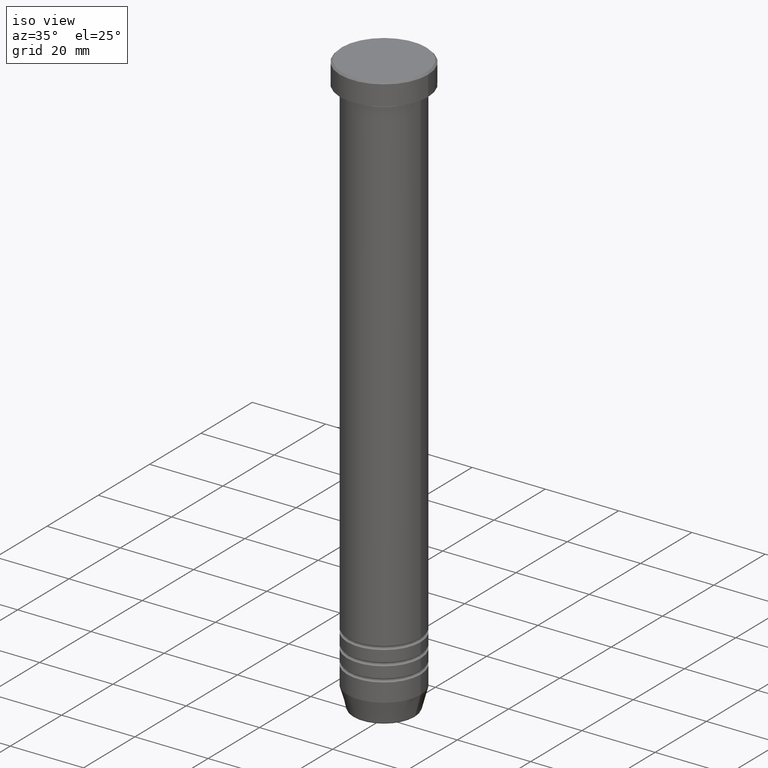
[diagram: clean part render]
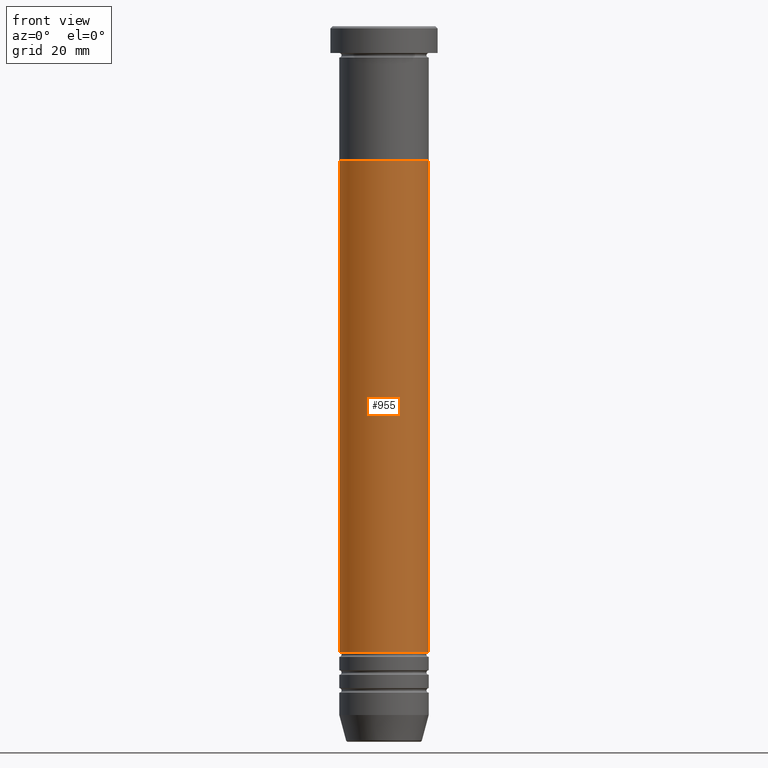
[diagram: tour spotlight — one face highlighted and labeled with its STEP entity id]
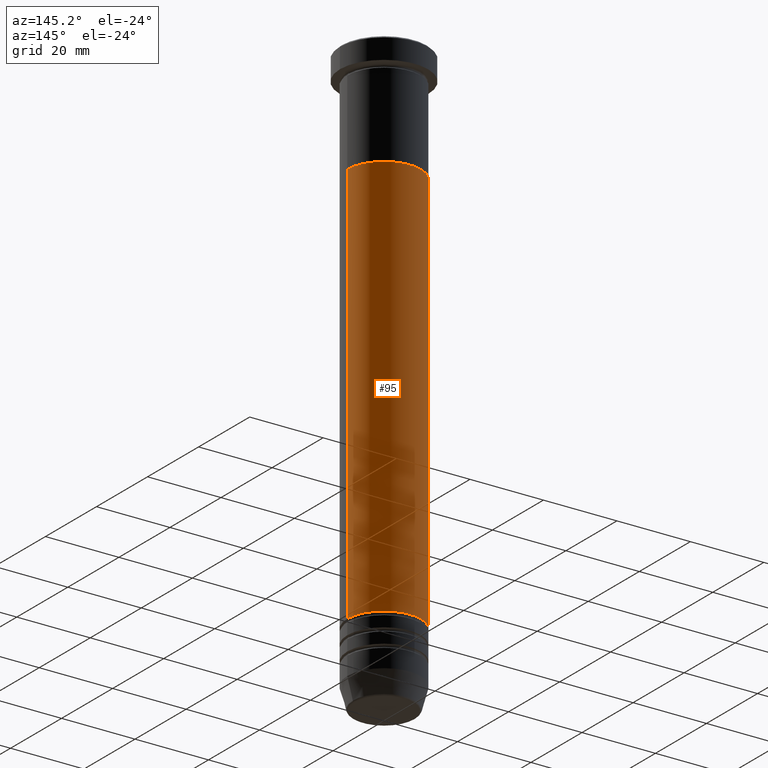
[diagram: tour spotlight — one face highlighted and labeled with its STEP entity id]
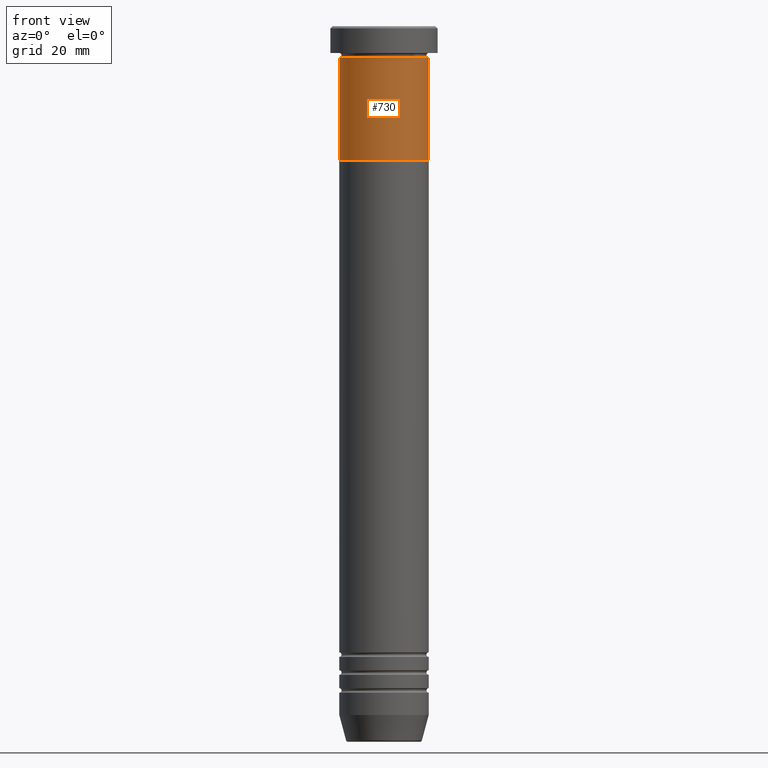
[diagram: tour spotlight — one face highlighted and labeled with its STEP entity id]
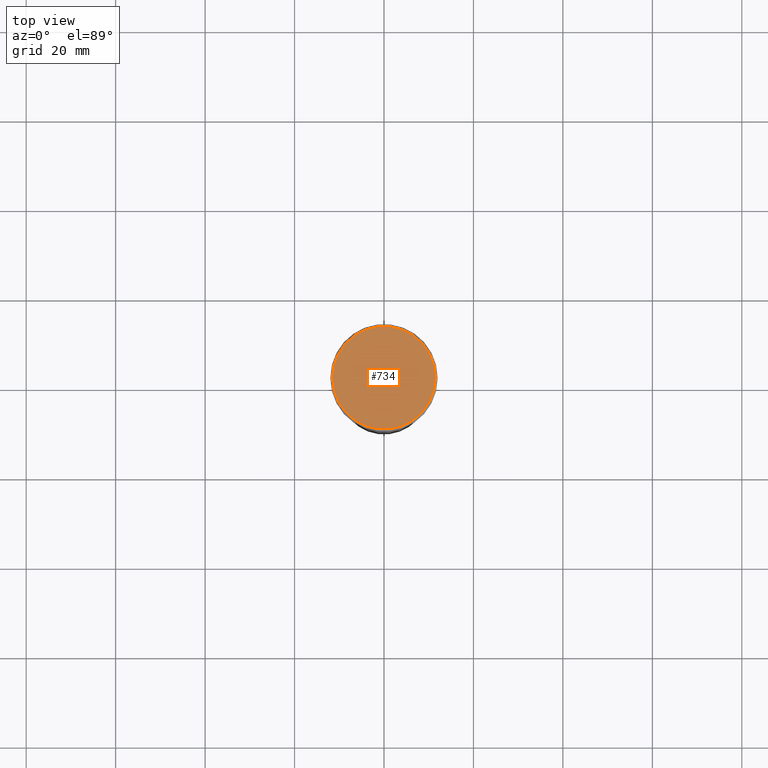
[diagram: tour spotlight — one face highlighted and labeled with its STEP entity id]
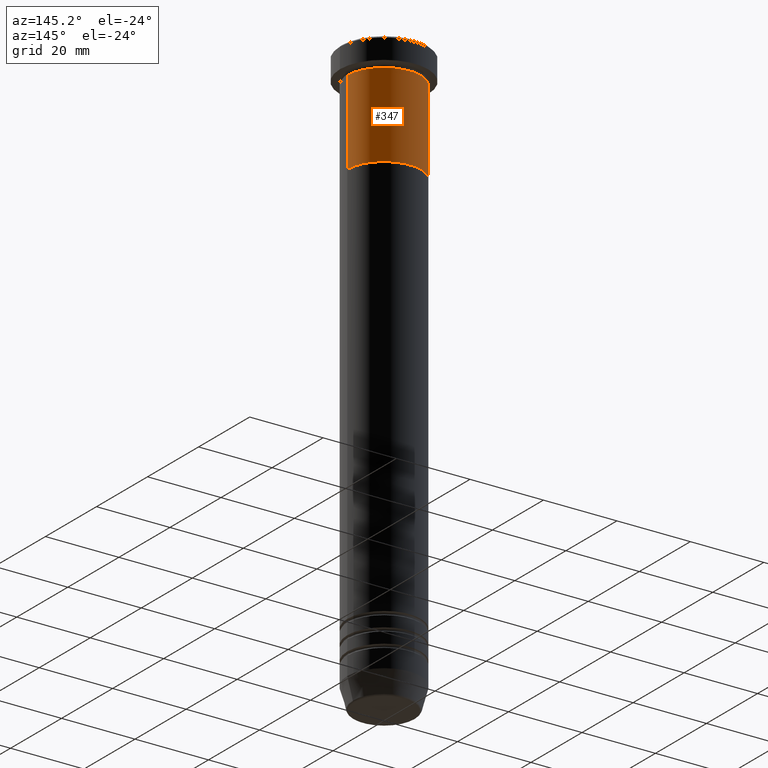
[diagram: tour spotlight — one face highlighted and labeled with its STEP entity id]
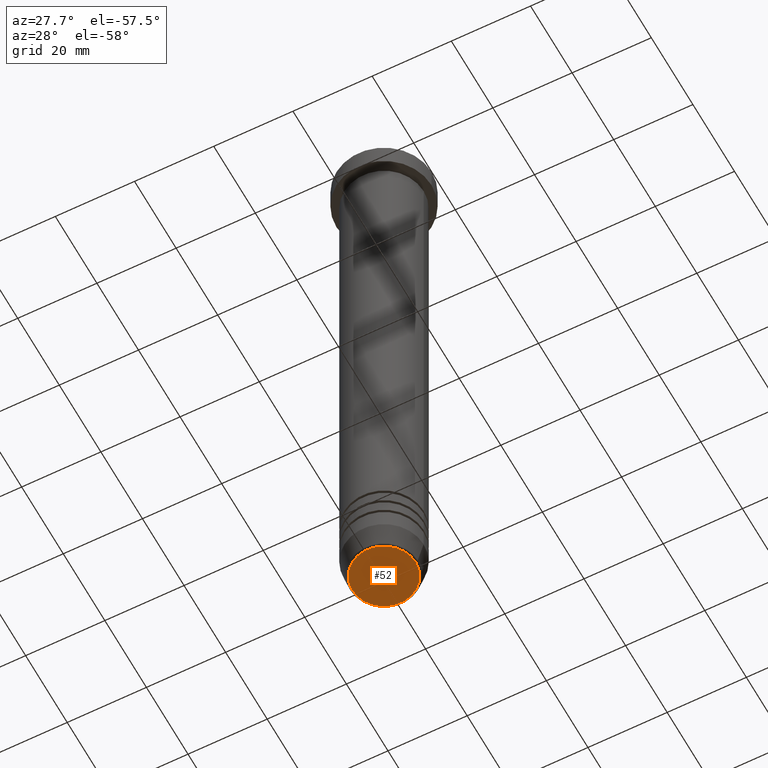
[diagram: tour spotlight — one face highlighted and labeled with its STEP entity id]
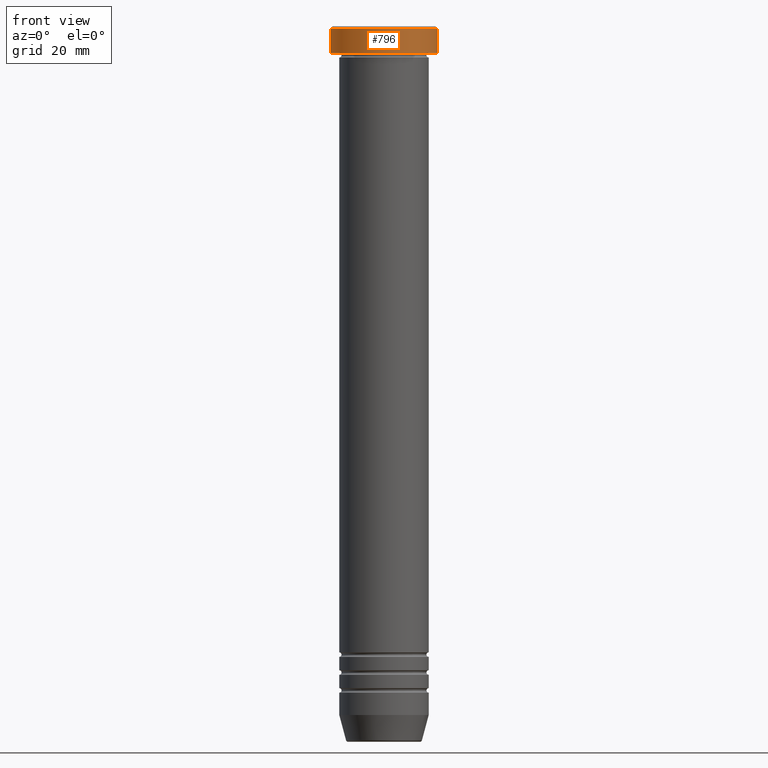
[diagram: tour spotlight — one face highlighted and labeled with its STEP entity id]
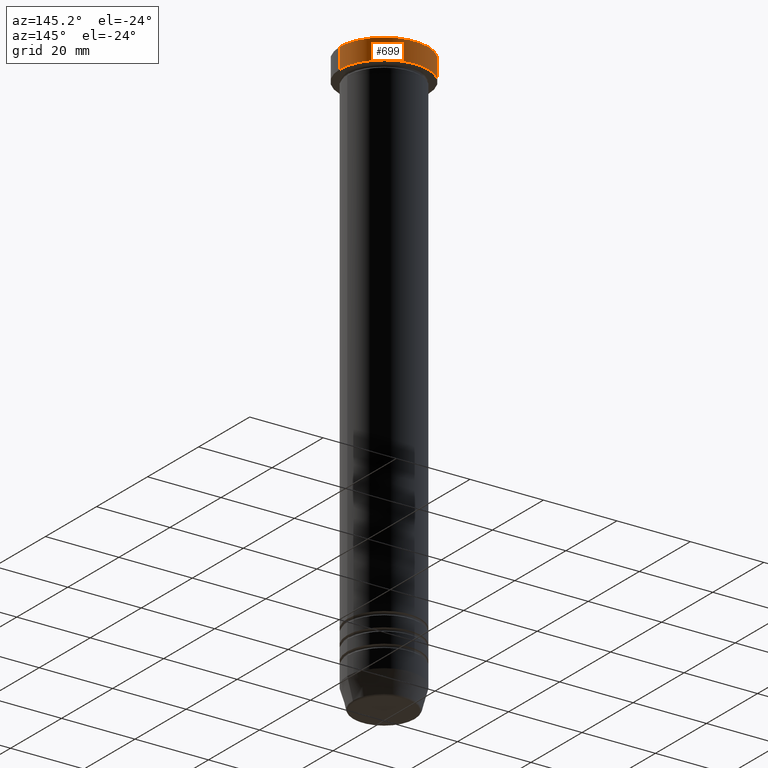
[diagram: tour spotlight — one face highlighted and labeled with its STEP entity id]
A machine part: a face-by-face anatomy tour. The part has 39 B-rep faces; the first image is the clean iso view, then the 8 largest visible faces are spotlighted one at a time (largest first), each with its STEP entity span.

Face 1 — front view, entity #955. In plain terms, the highlighted cylindrical surface (partial cylindrical patch) has radius 10 mm, axis along (-0, -0, 1).
Definition (entity closure, byte-faithful):
#27 = CARTESIAN_POINT ( 'NONE',  ( 0.000000000000000000, 0.000000000000000000, -140.0000000000000000 ) ) ;
#82 = FACE_OUTER_BOUND ( 'NONE', #834, .T. ) ;
#110 = ORIENTED_EDGE ( 'NONE', *, *, #420, .F. ) ;
#119 = CYLINDRICAL_SURFACE ( 'NONE', #571, 9.999999999999996447 ) ;
#215 = DIRECTION ( 'NONE',  ( 1.000000000000000000, 0.000000000000000000, 0.000000000000000000 ) ) ;
#278 = DIRECTION ( 'NONE',  ( 1.000000000000000000, 0.000000000000000000, 0.000000000000000000 ) ) ;
#299 = CARTESIAN_POINT ( 'NONE',  ( 9.999999999999996447, 0.000000000000000000, 0.000000000000000000 ) ) ;
#323 = CARTESIAN_POINT ( 'NONE',  ( -10.00000000000000178, 1.224646799147353454E-15, -30.00000000000000000 ) ) ;
#342 = ORIENTED_EDGE ( 'NONE', *, *, #432, .T. ) ;
#344 = DIRECTION ( 'NONE',  ( -0.000000000000000000, -0.000000000000000000, 1.000000000000000000 ) ) ;
#378 = DIRECTION ( 'NONE',  ( -0.000000000000000000, -0.000000000000000000, 1.000000000000000000 ) ) ;
#380 = CIRCLE ( 'NONE', #411, 9.999999999999992895 ) ;
#405 = CARTESIAN_POINT ( 'NONE',  ( -9.999999999999992895, 1.224646799147352665E-15, -140.0000000000000000 ) ) ;
#411 = AXIS2_PLACEMENT_3D ( 'NONE', #27, #442, #278 ) ;
#420 = EDGE_CURVE ( 'NONE', #895, #885, #535, .T. ) ;
#432 = EDGE_CURVE ( 'NONE', #599, #885, #714, .T. ) ;
#442 = DIRECTION ( 'NONE',  ( -0.000000000000000000, -0.000000000000000000, 1.000000000000000000 ) ) ;
#449 = LINE ( 'NONE', #700, #987 ) ;
#499 = CARTESIAN_POINT ( 'NONE',  ( 10.00000000000000000, 0.000000000000000000, -30.00000000000000000 ) ) ;
#535 = CIRCLE ( 'NONE', #671, 10.00000000000000000 ) ;
#537 = CARTESIAN_POINT ( 'NONE',  ( 0.000000000000000000, 0.000000000000000000, 0.000000000000000000 ) ) ;
#571 = AXIS2_PLACEMENT_3D ( 'NONE', #537, #692, #679 ) ;
#585 = VECTOR ( 'NONE', #378, 1000.000000000000000 ) ;
#599 = VERTEX_POINT ( 'NONE', #776 ) ;
#628 = CARTESIAN_POINT ( 'NONE',  ( 0.000000000000000000, 0.000000000000000000, -30.00000000000000000 ) ) ;
#671 = AXIS2_PLACEMENT_3D ( 'NONE', #628, #938, #215 ) ;
#679 = DIRECTION ( 'NONE',  ( 1.000000000000000000, 0.000000000000000000, 0.000000000000000000 ) ) ;
#692 = DIRECTION ( 'NONE',  ( -0.000000000000000000, -0.000000000000000000, 1.000000000000000000 ) ) ;
#700 = CARTESIAN_POINT ( 'NONE',  ( -9.999999999999996447, 1.224646799147352862E-15, 0.000000000000000000 ) ) ;
#714 = LINE ( 'NONE', #299, #585 ) ;
#776 = CARTESIAN_POINT ( 'NONE',  ( 9.999999999999992895, 0.000000000000000000, -140.0000000000000000 ) ) ;
#822 = ORIENTED_EDGE ( 'NONE', *, *, #960, .T. ) ;
#834 = EDGE_LOOP ( 'NONE', ( #1018, #822, #342, #110 ) ) ;
#885 = VERTEX_POINT ( 'NONE', #499 ) ;
#895 = VERTEX_POINT ( 'NONE', #323 ) ;
#899 = VERTEX_POINT ( 'NONE', #405 ) ;
#938 = DIRECTION ( 'NONE',  ( -0.000000000000000000, -0.000000000000000000, 1.000000000000000000 ) ) ;
#955 = ADVANCED_FACE ( 'NONE', ( #82 ), #119, .T. ) ;
#960 = EDGE_CURVE ( 'NONE', #899, #599, #380, .T. ) ;
#987 = VECTOR ( 'NONE', #344, 1000.000000000000000 ) ;
#1018 = ORIENTED_EDGE ( 'NONE', *, *, #1032, .F. ) ;
#1032 = EDGE_CURVE ( 'NONE', #899, #895, #449, .T. ) ;

Face 2 — auxiliary view, entity #95. In plain terms, the highlighted cylindrical surface (partial cylindrical patch) has radius 10 mm, axis along (-0, -0, 1).
Definition (entity closure, byte-faithful):
#2 = CARTESIAN_POINT ( 'NONE',  ( 0.000000000000000000, 0.000000000000000000, -30.00000000000000000 ) ) ;
#12 = AXIS2_PLACEMENT_3D ( 'NONE', #852, #456, #1021 ) ;
#95 = ADVANCED_FACE ( 'NONE', ( #182 ), #282, .T. ) ;
#115 = DIRECTION ( 'NONE',  ( -0.000000000000000000, -0.000000000000000000, 1.000000000000000000 ) ) ;
#182 = FACE_OUTER_BOUND ( 'NONE', #1051, .T. ) ;
#282 = CYLINDRICAL_SURFACE ( 'NONE', #950, 9.999999999999996447 ) ;
#291 = ORIENTED_EDGE ( 'NONE', *, *, #1032, .T. ) ;
#299 = CARTESIAN_POINT ( 'NONE',  ( 9.999999999999996447, 0.000000000000000000, 0.000000000000000000 ) ) ;
#323 = CARTESIAN_POINT ( 'NONE',  ( -10.00000000000000178, 1.224646799147353454E-15, -30.00000000000000000 ) ) ;
#344 = DIRECTION ( 'NONE',  ( -0.000000000000000000, -0.000000000000000000, 1.000000000000000000 ) ) ;
#372 = ORIENTED_EDGE ( 'NONE', *, *, #872, .F. ) ;
#378 = DIRECTION ( 'NONE',  ( -0.000000000000000000, -0.000000000000000000, 1.000000000000000000 ) ) ;
#382 = EDGE_CURVE ( 'NONE', #599, #899, #407, .T. ) ;
#405 = CARTESIAN_POINT ( 'NONE',  ( -9.999999999999992895, 1.224646799147352665E-15, -140.0000000000000000 ) ) ;
#407 = CIRCLE ( 'NONE', #12, 9.999999999999992895 ) ;
#429 = CARTESIAN_POINT ( 'NONE',  ( 0.000000000000000000, 0.000000000000000000, 0.000000000000000000 ) ) ;
#432 = EDGE_CURVE ( 'NONE', #599, #885, #714, .T. ) ;
#435 = DIRECTION ( 'NONE',  ( 1.000000000000000000, 0.000000000000000000, 0.000000000000000000 ) ) ;
#449 = LINE ( 'NONE', #700, #987 ) ;
#456 = DIRECTION ( 'NONE',  ( -0.000000000000000000, -0.000000000000000000, 1.000000000000000000 ) ) ;
#499 = CARTESIAN_POINT ( 'NONE',  ( 10.00000000000000000, 0.000000000000000000, -30.00000000000000000 ) ) ;
#564 = ORIENTED_EDGE ( 'NONE', *, *, #432, .F. ) ;
#583 = DIRECTION ( 'NONE',  ( -0.000000000000000000, -0.000000000000000000, 1.000000000000000000 ) ) ;
#585 = VECTOR ( 'NONE', #378, 1000.000000000000000 ) ;
#599 = VERTEX_POINT ( 'NONE', #776 ) ;
#700 = CARTESIAN_POINT ( 'NONE',  ( -9.999999999999996447, 1.224646799147352862E-15, 0.000000000000000000 ) ) ;
#714 = LINE ( 'NONE', #299, #585 ) ;
#776 = CARTESIAN_POINT ( 'NONE',  ( 9.999999999999992895, 0.000000000000000000, -140.0000000000000000 ) ) ;
#782 = AXIS2_PLACEMENT_3D ( 'NONE', #2, #583, #898 ) ;
#819 = ORIENTED_EDGE ( 'NONE', *, *, #382, .T. ) ;
#852 = CARTESIAN_POINT ( 'NONE',  ( 0.000000000000000000, 0.000000000000000000, -140.0000000000000000 ) ) ;
#872 = EDGE_CURVE ( 'NONE', #885, #895, #969, .T. ) ;
#885 = VERTEX_POINT ( 'NONE', #499 ) ;
#895 = VERTEX_POINT ( 'NONE', #323 ) ;
#898 = DIRECTION ( 'NONE',  ( 1.000000000000000000, 0.000000000000000000, 0.000000000000000000 ) ) ;
#899 = VERTEX_POINT ( 'NONE', #405 ) ;
#950 = AXIS2_PLACEMENT_3D ( 'NONE', #429, #115, #435 ) ;
#969 = CIRCLE ( 'NONE', #782, 10.00000000000000000 ) ;
#987 = VECTOR ( 'NONE', #344, 1000.000000000000000 ) ;
#1021 = DIRECTION ( 'NONE',  ( 1.000000000000000000, 0.000000000000000000, 0.000000000000000000 ) ) ;
#1032 = EDGE_CURVE ( 'NONE', #899, #895, #449, .T. ) ;
#1051 = EDGE_LOOP ( 'NONE', ( #819, #291, #372, #564 ) ) ;

Face 3 — front view, entity #730. In plain terms, the highlighted cylindrical surface (partial cylindrical patch) has radius 10 mm, axis along (-0, -0, 1).
Definition (entity closure, byte-faithful):
#33 = ORIENTED_EDGE ( 'NONE', *, *, #401, .F. ) ;
#46 = VERTEX_POINT ( 'NONE', #460 ) ;
#68 = DIRECTION ( 'NONE',  ( 1.000000000000000000, 0.000000000000000000, 0.000000000000000000 ) ) ;
#87 = CARTESIAN_POINT ( 'NONE',  ( 0.000000000000000000, 0.000000000000000000, -6.999999999999999112 ) ) ;
#106 = DIRECTION ( 'NONE',  ( -0.000000000000000000, -0.000000000000000000, 1.000000000000000000 ) ) ;
#146 = EDGE_LOOP ( 'NONE', ( #33, #817, #316, #330 ) ) ;
#148 = CARTESIAN_POINT ( 'NONE',  ( 0.000000000000000000, 0.000000000000000000, 0.000000000000000000 ) ) ;
#162 = DIRECTION ( 'NONE',  ( -0.000000000000000000, -0.000000000000000000, 1.000000000000000000 ) ) ;
#172 = AXIS2_PLACEMENT_3D ( 'NONE', #148, #636, #68 ) ;
#173 = CARTESIAN_POINT ( 'NONE',  ( 10.00000000000000000, 0.000000000000000000, -30.00000000000000000 ) ) ;
#177 = EDGE_CURVE ( 'NONE', #500, #46, #845, .T. ) ;
#178 = LINE ( 'NONE', #508, #1005 ) ;
#227 = LINE ( 'NONE', #1031, #864 ) ;
#298 = CYLINDRICAL_SURFACE ( 'NONE', #172, 10.00000000000000000 ) ;
#316 = ORIENTED_EDGE ( 'NONE', *, *, #489, .T. ) ;
#330 = ORIENTED_EDGE ( 'NONE', *, *, #177, .F. ) ;
#336 = AXIS2_PLACEMENT_3D ( 'NONE', #87, #581, #978 ) ;
#401 = EDGE_CURVE ( 'NONE', #457, #500, #178, .T. ) ;
#410 = CARTESIAN_POINT ( 'NONE',  ( -10.00000000000000000, 1.224646799147353256E-15, -6.999999999999999112 ) ) ;
#427 = DIRECTION ( 'NONE',  ( 1.000000000000000000, 0.000000000000000000, 0.000000000000000000 ) ) ;
#457 = VERTEX_POINT ( 'NONE', #991 ) ;
#460 = CARTESIAN_POINT ( 'NONE',  ( 10.00000000000000000, 0.000000000000000000, -6.999999999999999112 ) ) ;
#462 = CIRCLE ( 'NONE', #1056, 10.00000000000000000 ) ;
#473 = EDGE_CURVE ( 'NONE', #457, #853, #462, .T. ) ;
#489 = EDGE_CURVE ( 'NONE', #853, #46, #227, .T. ) ;
#500 = VERTEX_POINT ( 'NONE', #410 ) ;
#508 = CARTESIAN_POINT ( 'NONE',  ( -10.00000000000000000, 1.224646799147353256E-15, 0.000000000000000000 ) ) ;
#555 = FACE_OUTER_BOUND ( 'NONE', #146, .T. ) ;
#581 = DIRECTION ( 'NONE',  ( -0.000000000000000000, -0.000000000000000000, 1.000000000000000000 ) ) ;
#582 = DIRECTION ( 'NONE',  ( -0.000000000000000000, -0.000000000000000000, 1.000000000000000000 ) ) ;
#636 = DIRECTION ( 'NONE',  ( -0.000000000000000000, -0.000000000000000000, 1.000000000000000000 ) ) ;
#730 = ADVANCED_FACE ( 'NONE', ( #555 ), #298, .T. ) ;
#817 = ORIENTED_EDGE ( 'NONE', *, *, #473, .T. ) ;
#845 = CIRCLE ( 'NONE', #336, 10.00000000000000000 ) ;
#853 = VERTEX_POINT ( 'NONE', #173 ) ;
#864 = VECTOR ( 'NONE', #162, 1000.000000000000000 ) ;
#904 = CARTESIAN_POINT ( 'NONE',  ( 0.000000000000000000, 0.000000000000000000, -30.00000000000000000 ) ) ;
#978 = DIRECTION ( 'NONE',  ( 1.000000000000000000, 0.000000000000000000, 0.000000000000000000 ) ) ;
#991 = CARTESIAN_POINT ( 'NONE',  ( -10.00000000000000000, 1.224646799147353256E-15, -30.00000000000000000 ) ) ;
#1005 = VECTOR ( 'NONE', #582, 1000.000000000000000 ) ;
#1031 = CARTESIAN_POINT ( 'NONE',  ( 10.00000000000000000, 0.000000000000000000, 0.000000000000000000 ) ) ;
#1056 = AXIS2_PLACEMENT_3D ( 'NONE', #904, #106, #427 ) ;

Face 4 — top view, entity #734. In plain terms, the highlighted planar face has unit normal (0, -0, 1).
Definition (entity closure, byte-faithful):
#16 = AXIS2_PLACEMENT_3D ( 'NONE', #907, #992, #732 ) ;
#101 = CARTESIAN_POINT ( 'NONE',  ( -11.49999999999999467, 0.000000000000000000, 0.000000000000000000 ) ) ;
#104 = DIRECTION ( 'NONE',  ( 1.000000000000000000, 0.000000000000000000, 0.000000000000000000 ) ) ;
#107 = EDGE_LOOP ( 'NONE', ( #593, #592 ) ) ;
#180 = CARTESIAN_POINT ( 'NONE',  ( 0.000000000000000000, 0.000000000000000000, 0.000000000000000000 ) ) ;
#293 = DIRECTION ( 'NONE',  ( 1.000000000000000000, 0.000000000000000000, 0.000000000000000000 ) ) ;
#384 = VERTEX_POINT ( 'NONE', #746 ) ;
#395 = FACE_OUTER_BOUND ( 'NONE', #107, .T. ) ;
#404 = VERTEX_POINT ( 'NONE', #101 ) ;
#466 = EDGE_CURVE ( 'NONE', #384, #404, #568, .T. ) ;
#486 = DIRECTION ( 'NONE',  ( 0.000000000000000000, -0.000000000000000000, 1.000000000000000000 ) ) ;
#510 = DIRECTION ( 'NONE',  ( -0.000000000000000000, -0.000000000000000000, 1.000000000000000000 ) ) ;
#568 = CIRCLE ( 'NONE', #704, 11.49999999999999467 ) ;
#590 = CIRCLE ( 'NONE', #16, 11.49999999999999467 ) ;
#592 = ORIENTED_EDGE ( 'NONE', *, *, #466, .T. ) ;
#593 = ORIENTED_EDGE ( 'NONE', *, *, #905, .T. ) ;
#604 = AXIS2_PLACEMENT_3D ( 'NONE', #860, #486, #293 ) ;
#704 = AXIS2_PLACEMENT_3D ( 'NONE', #180, #510, #104 ) ;
#724 = PLANE ( 'NONE',  #604 ) ;
#732 = DIRECTION ( 'NONE',  ( 1.000000000000000000, 0.000000000000000000, 0.000000000000000000 ) ) ;
#734 = ADVANCED_FACE ( 'NONE', ( #395 ), #724, .T. ) ;
#746 = CARTESIAN_POINT ( 'NONE',  ( 11.49999999999999467, 1.438959988998139766E-15, 0.000000000000000000 ) ) ;
#860 = CARTESIAN_POINT ( 'NONE',  ( 0.000000000000000000, 0.000000000000000000, 0.000000000000000000 ) ) ;
#905 = EDGE_CURVE ( 'NONE', #404, #384, #590, .T. ) ;
#907 = CARTESIAN_POINT ( 'NONE',  ( 0.000000000000000000, 0.000000000000000000, 0.000000000000000000 ) ) ;
#992 = DIRECTION ( 'NONE',  ( -0.000000000000000000, -0.000000000000000000, 1.000000000000000000 ) ) ;

Face 5 — auxiliary view, entity #347. In plain terms, the highlighted cylindrical surface (partial cylindrical patch) has radius 10 mm, axis along (-0, -0, 1).
Definition (entity closure, byte-faithful):
#46 = VERTEX_POINT ( 'NONE', #460 ) ;
#134 = CARTESIAN_POINT ( 'NONE',  ( 0.000000000000000000, 0.000000000000000000, -6.999999999999999112 ) ) ;
#162 = DIRECTION ( 'NONE',  ( -0.000000000000000000, -0.000000000000000000, 1.000000000000000000 ) ) ;
#173 = CARTESIAN_POINT ( 'NONE',  ( 10.00000000000000000, 0.000000000000000000, -30.00000000000000000 ) ) ;
#176 = DIRECTION ( 'NONE',  ( -0.000000000000000000, -0.000000000000000000, 1.000000000000000000 ) ) ;
#178 = LINE ( 'NONE', #508, #1005 ) ;
#200 = DIRECTION ( 'NONE',  ( 1.000000000000000000, 0.000000000000000000, 0.000000000000000000 ) ) ;
#227 = LINE ( 'NONE', #1031, #864 ) ;
#253 = FACE_OUTER_BOUND ( 'NONE', #1007, .T. ) ;
#259 = CYLINDRICAL_SURFACE ( 'NONE', #1022, 10.00000000000000000 ) ;
#347 = ADVANCED_FACE ( 'NONE', ( #253 ), #259, .T. ) ;
#401 = EDGE_CURVE ( 'NONE', #457, #500, #178, .T. ) ;
#410 = CARTESIAN_POINT ( 'NONE',  ( -10.00000000000000000, 1.224646799147353256E-15, -6.999999999999999112 ) ) ;
#414 = CARTESIAN_POINT ( 'NONE',  ( 0.000000000000000000, 0.000000000000000000, 0.000000000000000000 ) ) ;
#457 = VERTEX_POINT ( 'NONE', #991 ) ;
#460 = CARTESIAN_POINT ( 'NONE',  ( 10.00000000000000000, 0.000000000000000000, -6.999999999999999112 ) ) ;
#489 = EDGE_CURVE ( 'NONE', #853, #46, #227, .T. ) ;
#500 = VERTEX_POINT ( 'NONE', #410 ) ;
#501 = ORIENTED_EDGE ( 'NONE', *, *, #401, .T. ) ;
#503 = DIRECTION ( 'NONE',  ( 1.000000000000000000, 0.000000000000000000, 0.000000000000000000 ) ) ;
#508 = CARTESIAN_POINT ( 'NONE',  ( -10.00000000000000000, 1.224646799147353256E-15, 0.000000000000000000 ) ) ;
#542 = EDGE_CURVE ( 'NONE', #46, #500, #781, .T. ) ;
#573 = ORIENTED_EDGE ( 'NONE', *, *, #542, .F. ) ;
#582 = DIRECTION ( 'NONE',  ( -0.000000000000000000, -0.000000000000000000, 1.000000000000000000 ) ) ;
#616 = DIRECTION ( 'NONE',  ( -0.000000000000000000, -0.000000000000000000, 1.000000000000000000 ) ) ;
#619 = ORIENTED_EDGE ( 'NONE', *, *, #1048, .T. ) ;
#696 = DIRECTION ( 'NONE',  ( 1.000000000000000000, 0.000000000000000000, 0.000000000000000000 ) ) ;
#723 = AXIS2_PLACEMENT_3D ( 'NONE', #134, #926, #200 ) ;
#740 = AXIS2_PLACEMENT_3D ( 'NONE', #840, #616, #696 ) ;
#766 = ORIENTED_EDGE ( 'NONE', *, *, #489, .F. ) ;
#781 = CIRCLE ( 'NONE', #723, 10.00000000000000000 ) ;
#840 = CARTESIAN_POINT ( 'NONE',  ( 0.000000000000000000, 0.000000000000000000, -30.00000000000000000 ) ) ;
#853 = VERTEX_POINT ( 'NONE', #173 ) ;
#864 = VECTOR ( 'NONE', #162, 1000.000000000000000 ) ;
#926 = DIRECTION ( 'NONE',  ( -0.000000000000000000, -0.000000000000000000, 1.000000000000000000 ) ) ;
#991 = CARTESIAN_POINT ( 'NONE',  ( -10.00000000000000000, 1.224646799147353256E-15, -30.00000000000000000 ) ) ;
#1005 = VECTOR ( 'NONE', #582, 1000.000000000000000 ) ;
#1007 = EDGE_LOOP ( 'NONE', ( #619, #501, #573, #766 ) ) ;
#1022 = AXIS2_PLACEMENT_3D ( 'NONE', #414, #176, #503 ) ;
#1031 = CARTESIAN_POINT ( 'NONE',  ( 10.00000000000000000, 0.000000000000000000, 0.000000000000000000 ) ) ;
#1048 = EDGE_CURVE ( 'NONE', #853, #457, #1058, .T. ) ;
#1058 = CIRCLE ( 'NONE', #740, 10.00000000000000000 ) ;

Face 6 — auxiliary view, entity #52. In plain terms, the highlighted planar face has unit normal (0, -0, 1).
Definition (entity closure, byte-faithful):
#52 = ADVANCED_FACE ( 'NONE', ( #57 ), #1027, .F. ) ;
#55 = CIRCLE ( 'NONE', #1042, 8.008641351423772647 ) ;
#57 = FACE_OUTER_BOUND ( 'NONE', #577, .T. ) ;
#135 = VERTEX_POINT ( 'NONE', #768 ) ;
#174 = AXIS2_PLACEMENT_3D ( 'NONE', #351, #770, #530 ) ;
#185 = ORIENTED_EDGE ( 'NONE', *, *, #1036, .T. ) ;
#205 = DIRECTION ( 'NONE',  ( 0.000000000000000000, 0.000000000000000000, -1.000000000000000000 ) ) ;
#345 = CARTESIAN_POINT ( 'NONE',  ( 0.000000000000000000, 0.000000000000000000, -160.0000000000000284 ) ) ;
#351 = CARTESIAN_POINT ( 'NONE',  ( 0.000000000000000000, 0.000000000000000000, -160.0000000000000284 ) ) ;
#359 = DIRECTION ( 'NONE',  ( 1.000000000000000000, 0.000000000000000000, 0.000000000000000000 ) ) ;
#505 = EDGE_CURVE ( 'NONE', #928, #135, #55, .T. ) ;
#530 = DIRECTION ( 'NONE',  ( 1.000000000000000000, 0.000000000000000000, 0.000000000000000000 ) ) ;
#577 = EDGE_LOOP ( 'NONE', ( #837, #185 ) ) ;
#631 = DIRECTION ( 'NONE',  ( 0.000000000000000000, -0.000000000000000000, 1.000000000000000000 ) ) ;
#754 = CIRCLE ( 'NONE', #174, 8.008641351423772647 ) ;
#768 = CARTESIAN_POINT ( 'NONE',  ( -8.008641351423772647, 1.010348648938492186E-15, -160.0000000000000284 ) ) ;
#770 = DIRECTION ( 'NONE',  ( 0.000000000000000000, 0.000000000000000000, -1.000000000000000000 ) ) ;
#777 = CARTESIAN_POINT ( 'NONE',  ( 0.000000000000000000, 1.347111479062088996E-14, -160.0000000000000284 ) ) ;
#837 = ORIENTED_EDGE ( 'NONE', *, *, #505, .T. ) ;
#858 = DIRECTION ( 'NONE',  ( 1.000000000000000000, 0.000000000000000000, 0.000000000000000000 ) ) ;
#928 = VERTEX_POINT ( 'NONE', #1052 ) ;
#1020 = AXIS2_PLACEMENT_3D ( 'NONE', #777, #631, #858 ) ;
#1027 = PLANE ( 'NONE',  #1020 ) ;
#1036 = EDGE_CURVE ( 'NONE', #135, #928, #754, .T. ) ;
#1042 = AXIS2_PLACEMENT_3D ( 'NONE', #345, #205, #359 ) ;
#1052 = CARTESIAN_POINT ( 'NONE',  ( 8.008641351423772647, 0.000000000000000000, -160.0000000000000284 ) ) ;

Face 7 — front view, entity #796. In plain terms, the highlighted cylindrical surface (partial cylindrical patch) has radius 12 mm, axis along (-0, -0, 1).
Definition (entity closure, byte-faithful):
#13 = FACE_OUTER_BOUND ( 'NONE', #354, .T. ) ;
#49 = LINE ( 'NONE', #758, #891 ) ;
#78 = CARTESIAN_POINT ( 'NONE',  ( 0.000000000000000000, 0.000000000000000000, -0.5000000000000056621 ) ) ;
#109 = DIRECTION ( 'NONE',  ( 1.000000000000000000, 0.000000000000000000, 0.000000000000000000 ) ) ;
#112 = AXIS2_PLACEMENT_3D ( 'NONE', #179, #743, #109 ) ;
#149 = VERTEX_POINT ( 'NONE', #362 ) ;
#179 = CARTESIAN_POINT ( 'NONE',  ( 0.000000000000000000, 0.000000000000000000, -6.000000000000000000 ) ) ;
#188 = CIRCLE ( 'NONE', #274, 12.00000000000000000 ) ;
#230 = LINE ( 'NONE', #618, #483 ) ;
#236 = DIRECTION ( 'NONE',  ( 1.000000000000000000, 0.000000000000000000, 0.000000000000000000 ) ) ;
#240 = CIRCLE ( 'NONE', #112, 12.00000000000000000 ) ;
#262 = DIRECTION ( 'NONE',  ( 1.000000000000000000, 0.000000000000000000, 0.000000000000000000 ) ) ;
#274 = AXIS2_PLACEMENT_3D ( 'NONE', #78, #475, #236 ) ;
#288 = CARTESIAN_POINT ( 'NONE',  ( -12.00000000000000000, 1.469576158976823947E-15, -0.5000000000000056621 ) ) ;
#324 = VERTEX_POINT ( 'NONE', #569 ) ;
#354 = EDGE_LOOP ( 'NONE', ( #543, #504, #644, #1040 ) ) ;
#362 = CARTESIAN_POINT ( 'NONE',  ( 12.00000000000000000, 0.000000000000000000, -6.000000000000000000 ) ) ;
#475 = DIRECTION ( 'NONE',  ( 0.000000000000000000, 0.000000000000000000, -1.000000000000000000 ) ) ;
#478 = EDGE_CURVE ( 'NONE', #149, #683, #230, .T. ) ;
#483 = VECTOR ( 'NONE', #931, 1000.000000000000000 ) ;
#504 = ORIENTED_EDGE ( 'NONE', *, *, #833, .T. ) ;
#513 = EDGE_CURVE ( 'NONE', #324, #538, #49, .T. ) ;
#538 = VERTEX_POINT ( 'NONE', #288 ) ;
#543 = ORIENTED_EDGE ( 'NONE', *, *, #513, .F. ) ;
#569 = CARTESIAN_POINT ( 'NONE',  ( -12.00000000000000000, 1.469576158976823947E-15, -6.000000000000000000 ) ) ;
#618 = CARTESIAN_POINT ( 'NONE',  ( 12.00000000000000000, 0.000000000000000000, 0.000000000000000000 ) ) ;
#644 = ORIENTED_EDGE ( 'NONE', *, *, #478, .T. ) ;
#683 = VERTEX_POINT ( 'NONE', #1047 ) ;
#697 = EDGE_CURVE ( 'NONE', #683, #538, #188, .T. ) ;
#707 = AXIS2_PLACEMENT_3D ( 'NONE', #983, #804, #262 ) ;
#743 = DIRECTION ( 'NONE',  ( -0.000000000000000000, -0.000000000000000000, 1.000000000000000000 ) ) ;
#758 = CARTESIAN_POINT ( 'NONE',  ( -12.00000000000000000, 1.469576158976823947E-15, 0.000000000000000000 ) ) ;
#796 = ADVANCED_FACE ( 'NONE', ( #13 ), #976, .T. ) ;
#804 = DIRECTION ( 'NONE',  ( -0.000000000000000000, -0.000000000000000000, 1.000000000000000000 ) ) ;
#833 = EDGE_CURVE ( 'NONE', #324, #149, #240, .T. ) ;
#855 = DIRECTION ( 'NONE',  ( -0.000000000000000000, -0.000000000000000000, 1.000000000000000000 ) ) ;
#891 = VECTOR ( 'NONE', #855, 1000.000000000000000 ) ;
#931 = DIRECTION ( 'NONE',  ( -0.000000000000000000, -0.000000000000000000, 1.000000000000000000 ) ) ;
#976 = CYLINDRICAL_SURFACE ( 'NONE', #707, 12.00000000000000000 ) ;
#983 = CARTESIAN_POINT ( 'NONE',  ( 0.000000000000000000, 0.000000000000000000, 0.000000000000000000 ) ) ;
#1040 = ORIENTED_EDGE ( 'NONE', *, *, #697, .T. ) ;
#1047 = CARTESIAN_POINT ( 'NONE',  ( 12.00000000000000000, 0.000000000000000000, -0.5000000000000056621 ) ) ;

Face 8 — auxiliary view, entity #699. In plain terms, the highlighted cylindrical surface (partial cylindrical patch) has radius 12 mm, axis along (-0, -0, 1).
Definition (entity closure, byte-faithful):
#9 = CARTESIAN_POINT ( 'NONE',  ( 0.000000000000000000, 0.000000000000000000, -0.5000000000000056621 ) ) ;
#38 = EDGE_LOOP ( 'NONE', ( #163, #381, #956, #81 ) ) ;
#49 = LINE ( 'NONE', #758, #891 ) ;
#81 = ORIENTED_EDGE ( 'NONE', *, *, #478, .F. ) ;
#149 = VERTEX_POINT ( 'NONE', #362 ) ;
#163 = ORIENTED_EDGE ( 'NONE', *, *, #972, .T. ) ;
#230 = LINE ( 'NONE', #618, #483 ) ;
#254 = AXIS2_PLACEMENT_3D ( 'NONE', #9, #989, #901 ) ;
#288 = CARTESIAN_POINT ( 'NONE',  ( -12.00000000000000000, 1.469576158976823947E-15, -0.5000000000000056621 ) ) ;
#304 = DIRECTION ( 'NONE',  ( 1.000000000000000000, 0.000000000000000000, 0.000000000000000000 ) ) ;
#322 = AXIS2_PLACEMENT_3D ( 'NONE', #526, #356, #850 ) ;
#324 = VERTEX_POINT ( 'NONE', #569 ) ;
#356 = DIRECTION ( 'NONE',  ( -0.000000000000000000, -0.000000000000000000, 1.000000000000000000 ) ) ;
#362 = CARTESIAN_POINT ( 'NONE',  ( 12.00000000000000000, 0.000000000000000000, -6.000000000000000000 ) ) ;
#381 = ORIENTED_EDGE ( 'NONE', *, *, #513, .T. ) ;
#400 = CYLINDRICAL_SURFACE ( 'NONE', #916, 12.00000000000000000 ) ;
#459 = EDGE_CURVE ( 'NONE', #538, #683, #794, .T. ) ;
#478 = EDGE_CURVE ( 'NONE', #149, #683, #230, .T. ) ;
#480 = DIRECTION ( 'NONE',  ( -0.000000000000000000, -0.000000000000000000, 1.000000000000000000 ) ) ;
#483 = VECTOR ( 'NONE', #931, 1000.000000000000000 ) ;
#513 = EDGE_CURVE ( 'NONE', #324, #538, #49, .T. ) ;
#526 = CARTESIAN_POINT ( 'NONE',  ( 0.000000000000000000, 0.000000000000000000, -6.000000000000000000 ) ) ;
#538 = VERTEX_POINT ( 'NONE', #288 ) ;
#569 = CARTESIAN_POINT ( 'NONE',  ( -12.00000000000000000, 1.469576158976823947E-15, -6.000000000000000000 ) ) ;
#618 = CARTESIAN_POINT ( 'NONE',  ( 12.00000000000000000, 0.000000000000000000, 0.000000000000000000 ) ) ;
#643 = CIRCLE ( 'NONE', #322, 12.00000000000000000 ) ;
#683 = VERTEX_POINT ( 'NONE', #1047 ) ;
#699 = ADVANCED_FACE ( 'NONE', ( #871 ), #400, .T. ) ;
#758 = CARTESIAN_POINT ( 'NONE',  ( -12.00000000000000000, 1.469576158976823947E-15, 0.000000000000000000 ) ) ;
#794 = CIRCLE ( 'NONE', #254, 12.00000000000000000 ) ;
#850 = DIRECTION ( 'NONE',  ( 1.000000000000000000, 0.000000000000000000, 0.000000000000000000 ) ) ;
#855 = DIRECTION ( 'NONE',  ( -0.000000000000000000, -0.000000000000000000, 1.000000000000000000 ) ) ;
#871 = FACE_OUTER_BOUND ( 'NONE', #38, .T. ) ;
#891 = VECTOR ( 'NONE', #855, 1000.000000000000000 ) ;
#901 = DIRECTION ( 'NONE',  ( 1.000000000000000000, 0.000000000000000000, 0.000000000000000000 ) ) ;
#916 = AXIS2_PLACEMENT_3D ( 'NONE', #1037, #480, #304 ) ;
#931 = DIRECTION ( 'NONE',  ( -0.000000000000000000, -0.000000000000000000, 1.000000000000000000 ) ) ;
#956 = ORIENTED_EDGE ( 'NONE', *, *, #459, .T. ) ;
#972 = EDGE_CURVE ( 'NONE', #149, #324, #643, .T. ) ;
#989 = DIRECTION ( 'NONE',  ( 0.000000000000000000, 0.000000000000000000, -1.000000000000000000 ) ) ;
#1037 = CARTESIAN_POINT ( 'NONE',  ( 0.000000000000000000, 0.000000000000000000, 0.000000000000000000 ) ) ;
#1047 = CARTESIAN_POINT ( 'NONE',  ( 12.00000000000000000, 0.000000000000000000, -0.5000000000000056621 ) ) ;